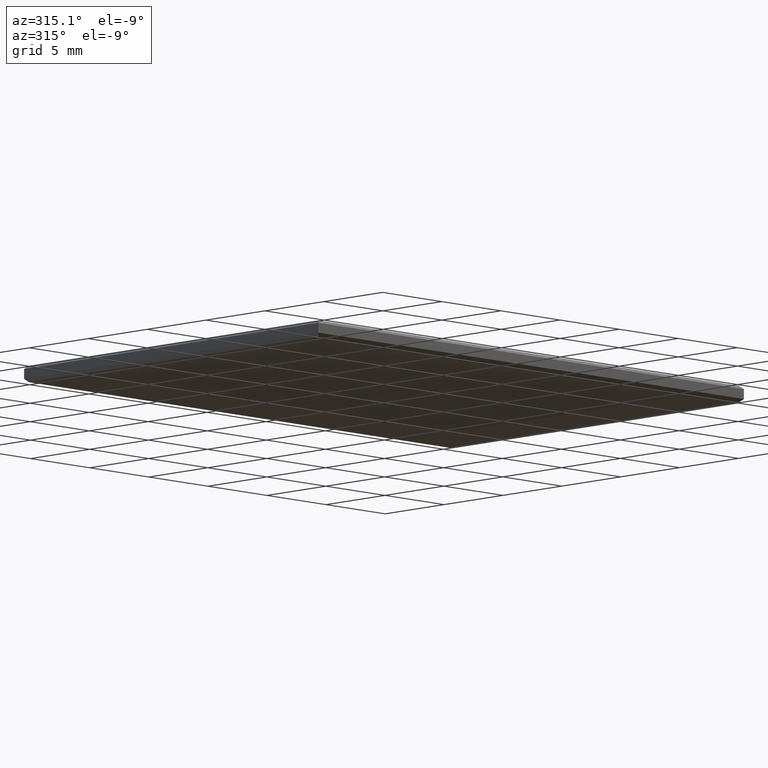
[diagram: clean part render]
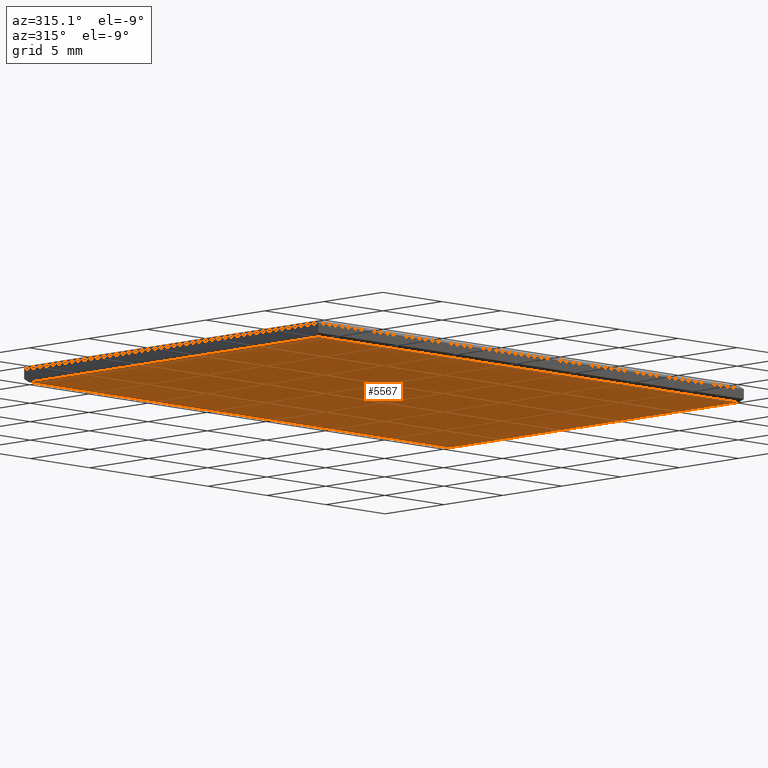
[diagram: same view with one face highlighted and labeled with its STEP entity id]
A machine part, auxiliary view. The second image highlights one B-rep face of the part: STEP entity #5567.
In plain terms, the highlighted planar face has unit normal (-0, 0, 1).
Its self-contained STEP definition (entity closure, byte-faithful):
#3 = PLANE ( 'NONE',  #1810 ) ;
#116 = VECTOR ( 'NONE', #4387, 1000.000000000000000 ) ;
#260 = CARTESIAN_POINT ( 'NONE',  ( 17.79999999999999700, 2.470246229790972900E-015, -0.5000000000000000000 ) ) ;
#272 = LINE ( 'NONE', #1719, #2395 ) ;
#364 = EDGE_LOOP ( 'NONE', ( #2162, #6563, #2285, #5386 ) ) ;
#416 = DIRECTION ( 'NONE',  ( 0.0000000000000000000, 1.000000000000000000, 0.0000000000000000000 ) ) ;
#427 = CARTESIAN_POINT ( 'NONE',  ( -17.79999999999999700, -12.29999999999999000, -0.5000000000000000000 ) ) ;
#519 = CARTESIAN_POINT ( 'NONE',  ( 17.79999999999999700, -12.29999999999999000, -0.5000000000000000000 ) ) ;
#1003 = VERTEX_POINT ( 'NONE', #427 ) ;
#1179 = CARTESIAN_POINT ( 'NONE',  ( 0.0000000000000000000, 0.0000000000000000000, -0.5000000000000000000 ) ) ;
#1226 = EDGE_CURVE ( 'NONE', #6246, #2665, #2567, .T. ) ;
#1692 = DIRECTION ( 'NONE',  ( -0.0000000000000000000, 0.0000000000000000000, 1.000000000000000000 ) ) ;
#1719 = CARTESIAN_POINT ( 'NONE',  ( -0.0000000000000000000, 12.30000000000000100, -0.5000000000000000000 ) ) ;
#1810 = AXIS2_PLACEMENT_3D ( 'NONE', #1179, #1692, #5272 ) ;
#2079 = EDGE_CURVE ( 'NONE', #3180, #6246, #272, .T. ) ;
#2162 = ORIENTED_EDGE ( 'NONE', *, *, #3688, .T. ) ;
#2248 = DIRECTION ( 'NONE',  ( 1.000000000000000000, 0.0000000000000000000, 0.0000000000000000000 ) ) ;
#2285 = ORIENTED_EDGE ( 'NONE', *, *, #2079, .T. ) ;
#2395 = VECTOR ( 'NONE', #2248, 1000.000000000000000 ) ;
#2567 = LINE ( 'NONE', #260, #116 ) ;
#2665 = VERTEX_POINT ( 'NONE', #519 ) ;
#2696 = VECTOR ( 'NONE', #416, 1000.000000000000000 ) ;
#2856 = EDGE_CURVE ( 'NONE', #1003, #3180, #5112, .T. ) ;
#3068 = DIRECTION ( 'NONE',  ( -1.000000000000000000, 0.0000000000000000000, 0.0000000000000000000 ) ) ;
#3180 = VERTEX_POINT ( 'NONE', #4912 ) ;
#3366 = VECTOR ( 'NONE', #3068, 1000.000000000000000 ) ;
#3512 = CARTESIAN_POINT ( 'NONE',  ( -17.79999999999999700, 0.0000000000000000000, -0.5000000000000000000 ) ) ;
#3688 = EDGE_CURVE ( 'NONE', #2665, #1003, #4719, .T. ) ;
#3744 = CARTESIAN_POINT ( 'NONE',  ( 17.79999999999999400, 12.30000000000000100, -0.5000000000000000000 ) ) ;
#4214 = FACE_OUTER_BOUND ( 'NONE', #364, .T. ) ;
#4387 = DIRECTION ( 'NONE',  ( 1.387778780781445700E-016, -1.000000000000000000, 0.0000000000000000000 ) ) ;
#4719 = LINE ( 'NONE', #6129, #3366 ) ;
#4912 = CARTESIAN_POINT ( 'NONE',  ( -17.79999999999999700, 12.30000000000000100, -0.5000000000000000000 ) ) ;
#5112 = LINE ( 'NONE', #3512, #2696 ) ;
#5272 = DIRECTION ( 'NONE',  ( 1.000000000000000000, 0.0000000000000000000, 0.0000000000000000000 ) ) ;
#5386 = ORIENTED_EDGE ( 'NONE', *, *, #1226, .T. ) ;
#5567 = ADVANCED_FACE ( 'NONE', ( #4214 ), #3, .F. ) ;
#6129 = CARTESIAN_POINT ( 'NONE',  ( -0.0000000000000000000, -12.29999999999999000, -0.5000000000000000000 ) ) ;
#6246 = VERTEX_POINT ( 'NONE', #3744 ) ;
#6563 = ORIENTED_EDGE ( 'NONE', *, *, #2856, .T. ) ;